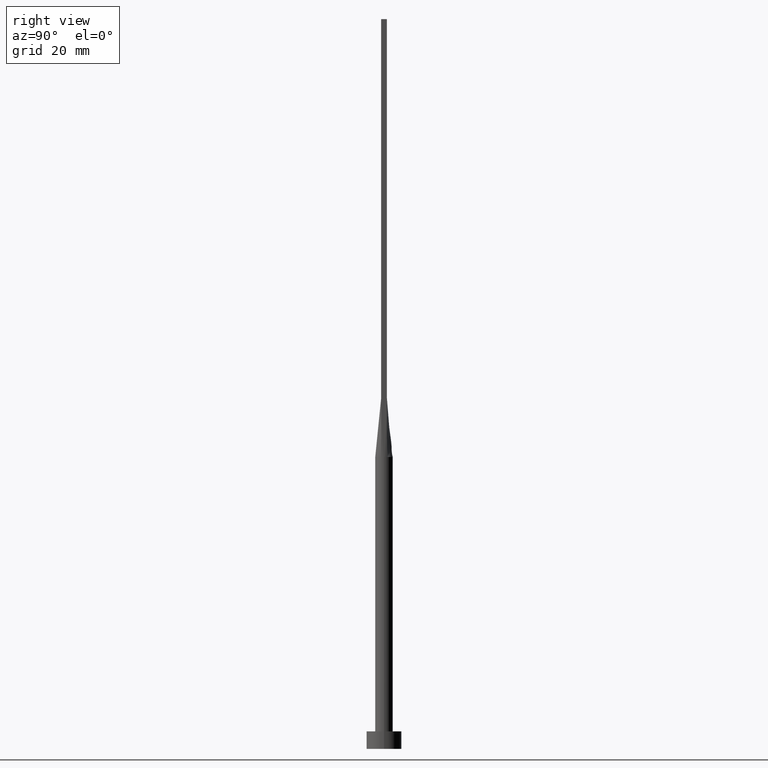
[diagram: clean part render]
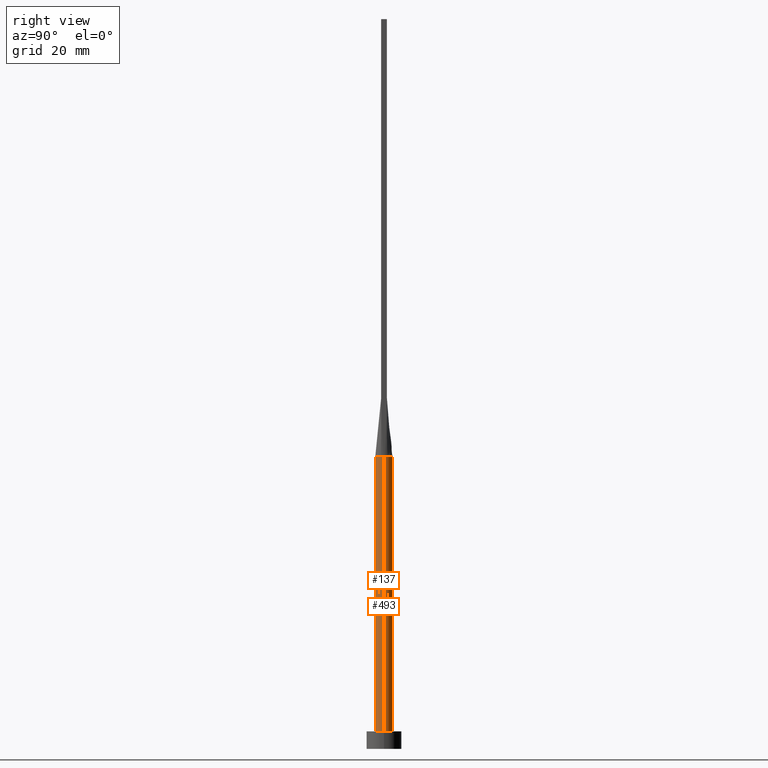
[diagram: same view with one multi-face feature highlighted, each face labeled with its STEP entity id]
A machine part, right view. The highlighted faces form ONE feature: a constant-radius fillet chain: 2 tangent blend faces with common blend radius 1.5 mm. The faces share edges in the B-rep.
Their STEP definitions:
[1] entity #493 (Cylinder):
#11 = CARTESIAN_POINT ( 'NONE',  ( 0.000000000000000000, 0.000000000000000000, 50.00000000000000000 ) ) ;
#15 = VERTEX_POINT ( 'NONE', #366 ) ;
#19 = CARTESIAN_POINT ( 'NONE',  ( 0.000000000000000000, 0.000000000000000000, 50.00000000000000000 ) ) ;
#25 = EDGE_CURVE ( 'NONE', #80, #444, #497, .T. ) ;
#27 = DIRECTION ( 'NONE',  ( 0.000000000000000000, 0.000000000000000000, 1.000000000000000000 ) ) ;
#32 = B_SPLINE_CURVE_WITH_KNOTS ( 'NONE', 3,
 ( #299, #473, #255, #524, #214, #78, #119, #73, #40, #301, #313, #572, #41, #358, #220, #177, #176, #570 ),
 .UNSPECIFIED., .F., .F.,
 ( 4, 2, 2, 2, 2, 2, 2, 2, 4 ),
 ( 0.000000000000000000, 0.1250000000000000000, 0.2500000000000000000, 0.3750000000000000000, 0.5000000000000000000, 0.6250000000000000000, 0.7500000000000000000, 0.8750000000000000000, 1.000000000000000000 ),
 .UNSPECIFIED. ) ;
#33 = VECTOR ( 'NONE', #529, 1000.000000000000000 ) ;
#40 = CARTESIAN_POINT ( 'NONE',  ( 0.1761797990592590679, 1.500000000000000222, 50.00000000000000000 ) ) ;
#41 = CARTESIAN_POINT ( 'NONE',  ( -0.8182264876570950474, 1.266912425724810554, 50.00000000000000000 ) ) ;
#42 = DIRECTION ( 'NONE',  ( 0.000000000000000000, 0.000000000000000000, 1.000000000000000000 ) ) ;
#44 = EDGE_CURVE ( 'NONE', #80, #152, #56, .T. ) ;
#45 = CIRCLE ( 'NONE', #90, 1.500000000000000222 ) ;
#51 = DIRECTION ( 'NONE',  ( -0.000000000000000000, -0.000000000000000000, -1.000000000000000000 ) ) ;
#56 = CIRCLE ( 'NONE', #312, 1.500000000000000222 ) ;
#73 = CARTESIAN_POINT ( 'NONE',  ( 0.3520402531411749303, 1.468082505288407447, 49.99999999999999289 ) ) ;
#78 = CARTESIAN_POINT ( 'NONE',  ( 0.8182264876570948253, 1.266912425724810110, 50.00000000000000711 ) ) ;
#80 = VERTEX_POINT ( 'NONE', #481 ) ;
#87 = DIRECTION ( 'NONE',  ( -1.000000000000000000, 0.000000000000000000, 0.000000000000000000 ) ) ;
#90 = AXIS2_PLACEMENT_3D ( 'NONE', #19, #196, #287 ) ;
#96 = ORIENTED_EDGE ( 'NONE', *, *, #99, .T. ) ;
#99 = EDGE_CURVE ( 'NONE', #444, #15, #536, .T. ) ;
#116 = EDGE_CURVE ( 'NONE', #192, #15, #310, .T. ) ;
#119 = CARTESIAN_POINT ( 'NONE',  ( 0.6732153042498577600, 1.351288176626052717, 50.00000000000000711 ) ) ;
#141 = CARTESIAN_POINT ( 'NONE',  ( 1.500000000000000222, 1.836970198721030181E-16, 3.000000000000000000 ) ) ;
#152 = VERTEX_POINT ( 'NONE', #447 ) ;
#176 = CARTESIAN_POINT ( 'NONE',  ( -1.373020107211261331, 0.6153643240040217455, 50.00000000000000711 ) ) ;
#177 = CARTESIAN_POINT ( 'NONE',  ( -1.316960349798174557, 0.7311494208568980468, 50.00000000000003553 ) ) ;
#192 = VERTEX_POINT ( 'NONE', #551 ) ;
#196 = DIRECTION ( 'NONE',  ( 0.000000000000000000, 0.000000000000000000, 1.000000000000000000 ) ) ;
#204 = CARTESIAN_POINT ( 'NONE',  ( 0.000000000000000000, 0.000000000000000000, 3.000000000000000000 ) ) ;
#214 = CARTESIAN_POINT ( 'NONE',  ( 1.062433464748102407, 1.070418989248103525, 49.99999999999999289 ) ) ;
#220 = CARTESIAN_POINT ( 'NONE',  ( -1.161819288130433891, 0.9587178835757675932, 50.00000000000002842 ) ) ;
#221 = EDGE_CURVE ( 'NONE', #281, #192, #45, .T. ) ;
#222 = EDGE_LOOP ( 'NONE', ( #293, #544, #96, #469, #328, #363 ) ) ;
#223 = CYLINDRICAL_SURFACE ( 'NONE', #356, 1.500000000000000222 ) ;
#231 = CARTESIAN_POINT ( 'NONE',  ( 0.000000000000000000, 0.000000000000000000, 50.00000000000000000 ) ) ;
#255 = CARTESIAN_POINT ( 'NONE',  ( 1.316960349798174557, 0.7311494208568982689, 50.00000000000002842 ) ) ;
#264 = VECTOR ( 'NONE', #51, 1000.000000000000000 ) ;
#278 = CARTESIAN_POINT ( 'NONE',  ( 1.500000000000000222, 1.836970198721030181E-16, 50.00000000000000000 ) ) ;
#281 = VERTEX_POINT ( 'NONE', #569 ) ;
#286 = AXIS2_PLACEMENT_3D ( 'NONE', #204, #27, #380 ) ;
#287 = DIRECTION ( 'NONE',  ( 1.000000000000000000, 0.000000000000000000, 0.000000000000000000 ) ) ;
#293 = ORIENTED_EDGE ( 'NONE', *, *, #44, .F. ) ;
#299 = CARTESIAN_POINT ( 'NONE',  ( 1.412628473635865189, 0.5045102250504699404, 50.00000000000000000 ) ) ;
#301 = CARTESIAN_POINT ( 'NONE',  ( -0.1761797990592590402, 1.499999999999999778, 50.00000000000000711 ) ) ;
#308 = DIRECTION ( 'NONE',  ( 1.000000000000000000, 0.000000000000000000, 0.000000000000000000 ) ) ;
#310 = LINE ( 'NONE', #395, #33 ) ;
#312 = AXIS2_PLACEMENT_3D ( 'NONE', #231, #42, #308 ) ;
#313 = CARTESIAN_POINT ( 'NONE',  ( -0.3520402531411749858, 1.468082505288407891, 50.00000000000000711 ) ) ;
#328 = ORIENTED_EDGE ( 'NONE', *, *, #221, .F. ) ;
#356 = AXIS2_PLACEMENT_3D ( 'NONE', #11, #401, #87 ) ;
#358 = CARTESIAN_POINT ( 'NONE',  ( -1.062433464748102407, 1.070418989248103525, 49.99999999999998579 ) ) ;
#363 = ORIENTED_EDGE ( 'NONE', *, *, #385, .F. ) ;
#366 = CARTESIAN_POINT ( 'NONE',  ( -1.500000000000000222, 0.000000000000000000, 3.000000000000000000 ) ) ;
#380 = DIRECTION ( 'NONE',  ( 1.000000000000000000, 0.000000000000000000, 0.000000000000000000 ) ) ;
#385 = EDGE_CURVE ( 'NONE', #152, #281, #32, .T. ) ;
#395 = CARTESIAN_POINT ( 'NONE',  ( -1.500000000000000222, 0.000000000000000000, 50.00000000000000000 ) ) ;
#401 = DIRECTION ( 'NONE',  ( -0.000000000000000000, -0.000000000000000000, -1.000000000000000000 ) ) ;
#444 = VERTEX_POINT ( 'NONE', #141 ) ;
#447 = CARTESIAN_POINT ( 'NONE',  ( 1.412628473635865189, 0.5045102250504699404, 50.00000000000000000 ) ) ;
#469 = ORIENTED_EDGE ( 'NONE', *, *, #116, .F. ) ;
#473 = CARTESIAN_POINT ( 'NONE',  ( 1.373020107211261109, 0.6153643240040217455, 50.00000000000000000 ) ) ;
#481 = CARTESIAN_POINT ( 'NONE',  ( 1.500000000000000000, 1.053334699963867185E-17, 50.00000000000000000 ) ) ;
#493 = ADVANCED_FACE ( 'NONE', ( #498 ), #223, .T. ) ;
#497 = LINE ( 'NONE', #278, #264 ) ;
#498 = FACE_OUTER_BOUND ( 'NONE', #222, .T. ) ;
#524 = CARTESIAN_POINT ( 'NONE',  ( 1.161819288130433891, 0.9587178835757675932, 50.00000000000000711 ) ) ;
#529 = DIRECTION ( 'NONE',  ( -0.000000000000000000, -0.000000000000000000, -1.000000000000000000 ) ) ;
#536 = CIRCLE ( 'NONE', #286, 1.500000000000000222 ) ;
#544 = ORIENTED_EDGE ( 'NONE', *, *, #25, .T. ) ;
#551 = CARTESIAN_POINT ( 'NONE',  ( -1.500000000000000000, -6.850053904551815961E-17, 50.00000000000000000 ) ) ;
#569 = CARTESIAN_POINT ( 'NONE',  ( -1.412646936588081381, 0.5045169241220069933, 50.00000000000000000 ) ) ;
#570 = CARTESIAN_POINT ( 'NONE',  ( -1.412646936588081381, 0.5045169241220069933, 50.00000000000000000 ) ) ;
#572 = CARTESIAN_POINT ( 'NONE',  ( -0.6732153042498576490, 1.351288176626052495, 49.99999999999999289 ) ) ;
[2] entity #137 (Cylinder):
#6 = DIRECTION ( 'NONE',  ( -0.000000000000000000, -0.000000000000000000, -1.000000000000000000 ) ) ;
#15 = VERTEX_POINT ( 'NONE', #366 ) ;
#16 = ORIENTED_EDGE ( 'NONE', *, *, #116, .T. ) ;
#22 = DIRECTION ( 'NONE',  ( 0.000000000000000000, 0.000000000000000000, 1.000000000000000000 ) ) ;
#25 = EDGE_CURVE ( 'NONE', #80, #444, #497, .T. ) ;
#33 = VECTOR ( 'NONE', #529, 1000.000000000000000 ) ;
#51 = DIRECTION ( 'NONE',  ( -0.000000000000000000, -0.000000000000000000, -1.000000000000000000 ) ) ;
#59 = ORIENTED_EDGE ( 'NONE', *, *, #122, .F. ) ;
#80 = VERTEX_POINT ( 'NONE', #481 ) ;
#82 = ORIENTED_EDGE ( 'NONE', *, *, #435, .T. ) ;
#114 = AXIS2_PLACEMENT_3D ( 'NONE', #123, #6, #542 ) ;
#116 = EDGE_CURVE ( 'NONE', #192, #15, #310, .T. ) ;
#120 = AXIS2_PLACEMENT_3D ( 'NONE', #125, #262, #438 ) ;
#122 = EDGE_CURVE ( 'NONE', #522, #80, #319, .T. ) ;
#123 = CARTESIAN_POINT ( 'NONE',  ( 0.000000000000000000, 0.000000000000000000, 50.00000000000000000 ) ) ;
#125 = CARTESIAN_POINT ( 'NONE',  ( 0.000000000000000000, 0.000000000000000000, 3.000000000000000000 ) ) ;
#132 = CARTESIAN_POINT ( 'NONE',  ( -1.412629890847167724, -0.5045107419440655327, 50.00000000000000000 ) ) ;
#133 = EDGE_LOOP ( 'NONE', ( #379, #59, #254, #359, #16, #82 ) ) ;
#137 = ADVANCED_FACE ( 'NONE', ( #575 ), #173, .T. ) ;
#141 = CARTESIAN_POINT ( 'NONE',  ( 1.500000000000000222, 1.836970198721030181E-16, 3.000000000000000000 ) ) ;
#151 = DIRECTION ( 'NONE',  ( 0.000000000000000000, 0.000000000000000000, 1.000000000000000000 ) ) ;
#160 = AXIS2_PLACEMENT_3D ( 'NONE', #242, #22, #180 ) ;
#173 = CYLINDRICAL_SURFACE ( 'NONE', #114, 1.500000000000000222 ) ;
#180 = DIRECTION ( 'NONE',  ( 1.000000000000000000, 0.000000000000000000, 0.000000000000000000 ) ) ;
#187 = CIRCLE ( 'NONE', #160, 1.500000000000000222 ) ;
#192 = VERTEX_POINT ( 'NONE', #551 ) ;
#202 = VERTEX_POINT ( 'NONE', #132 ) ;
#227 = EDGE_CURVE ( 'NONE', #202, #522, #187, .T. ) ;
#242 = CARTESIAN_POINT ( 'NONE',  ( 0.000000000000000000, 0.000000000000000000, 50.00000000000000000 ) ) ;
#254 = ORIENTED_EDGE ( 'NONE', *, *, #227, .F. ) ;
#261 = CARTESIAN_POINT ( 'NONE',  ( 0.000000000000000000, 0.000000000000000000, 50.00000000000000000 ) ) ;
#262 = DIRECTION ( 'NONE',  ( 0.000000000000000000, 0.000000000000000000, 1.000000000000000000 ) ) ;
#264 = VECTOR ( 'NONE', #51, 1000.000000000000000 ) ;
#278 = CARTESIAN_POINT ( 'NONE',  ( 1.500000000000000222, 1.836970198721030181E-16, 50.00000000000000000 ) ) ;
#306 = DIRECTION ( 'NONE',  ( 1.000000000000000000, 2.664535259100375697E-15, 0.000000000000000000 ) ) ;
#310 = LINE ( 'NONE', #395, #33 ) ;
#319 = CIRCLE ( 'NONE', #577, 1.500000000000000222 ) ;
#347 = EDGE_CURVE ( 'NONE', #192, #202, #376, .T. ) ;
#357 = DIRECTION ( 'NONE',  ( 0.000000000000000000, 0.000000000000000000, 1.000000000000000000 ) ) ;
#359 = ORIENTED_EDGE ( 'NONE', *, *, #347, .F. ) ;
#366 = CARTESIAN_POINT ( 'NONE',  ( -1.500000000000000222, 0.000000000000000000, 3.000000000000000000 ) ) ;
#376 = CIRCLE ( 'NONE', #543, 1.500000000000000222 ) ;
#379 = ORIENTED_EDGE ( 'NONE', *, *, #25, .F. ) ;
#384 = CARTESIAN_POINT ( 'NONE',  ( 0.000000000000000000, 0.000000000000000000, 50.00000000000000000 ) ) ;
#395 = CARTESIAN_POINT ( 'NONE',  ( -1.500000000000000222, 0.000000000000000000, 50.00000000000000000 ) ) ;
#398 = CARTESIAN_POINT ( 'NONE',  ( 1.412648369950143756, -0.5045174509283282260, 50.00000000000000000 ) ) ;
#435 = EDGE_CURVE ( 'NONE', #15, #444, #532, .T. ) ;
#438 = DIRECTION ( 'NONE',  ( 1.000000000000000000, 0.000000000000000000, 0.000000000000000000 ) ) ;
#444 = VERTEX_POINT ( 'NONE', #141 ) ;
#462 = DIRECTION ( 'NONE',  ( 1.000000000000000000, 0.000000000000000000, 0.000000000000000000 ) ) ;
#481 = CARTESIAN_POINT ( 'NONE',  ( 1.500000000000000000, 1.053334699963867185E-17, 50.00000000000000000 ) ) ;
#497 = LINE ( 'NONE', #278, #264 ) ;
#522 = VERTEX_POINT ( 'NONE', #398 ) ;
#529 = DIRECTION ( 'NONE',  ( -0.000000000000000000, -0.000000000000000000, -1.000000000000000000 ) ) ;
#532 = CIRCLE ( 'NONE', #120, 1.500000000000000222 ) ;
#542 = DIRECTION ( 'NONE',  ( -1.000000000000000000, 0.000000000000000000, 0.000000000000000000 ) ) ;
#543 = AXIS2_PLACEMENT_3D ( 'NONE', #384, #151, #462 ) ;
#551 = CARTESIAN_POINT ( 'NONE',  ( -1.500000000000000000, -6.850053904551815961E-17, 50.00000000000000000 ) ) ;
#575 = FACE_OUTER_BOUND ( 'NONE', #133, .T. ) ;
#577 = AXIS2_PLACEMENT_3D ( 'NONE', #261, #357, #306 ) ;